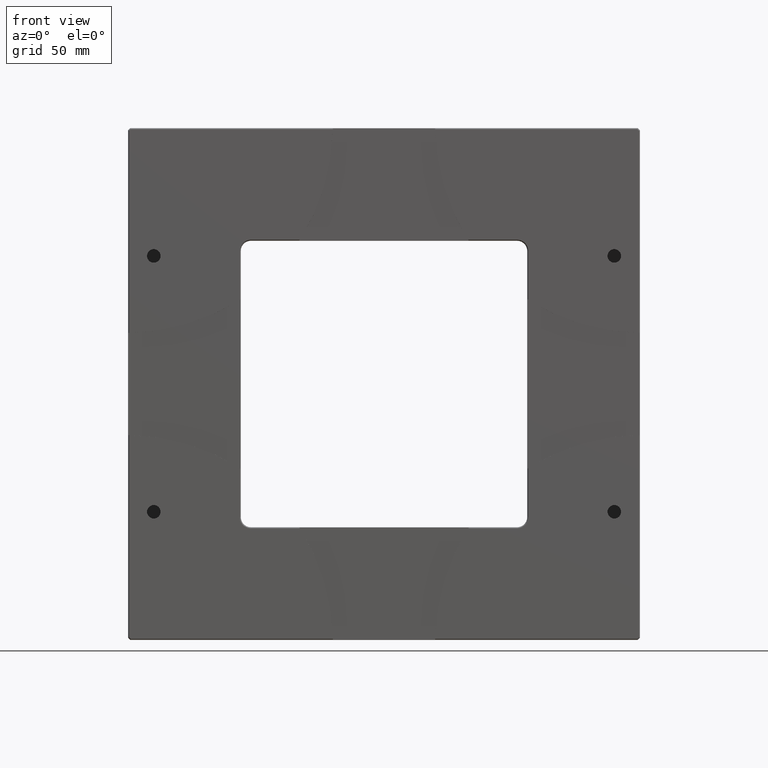
[diagram: clean part render]
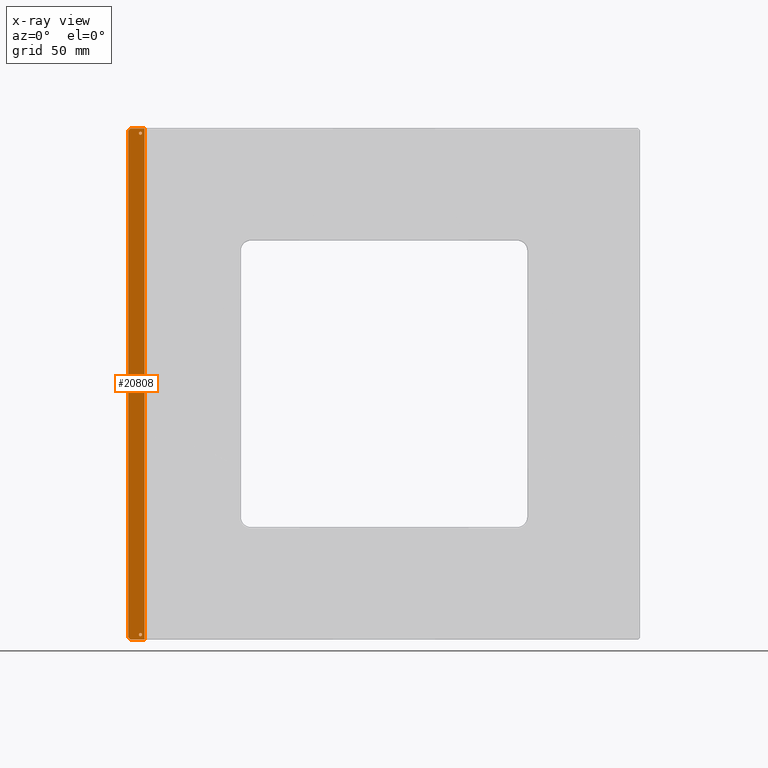
[diagram: x-ray — body ghosted, one internal face saturated and labeled with its STEP entity id]
A machine part, front view, then the same camera in x-ray: the body is ghosted and one INTERNAL B-rep face — a face not visible from any outside direction — is saturated and labeled: STEP entity #20808.
In plain terms, the highlighted planar face has unit normal (-0, -1, -0).
Its self-contained STEP definition (entity closure, byte-faithful):
#829 = CARTESIAN_POINT ( 'NONE',  ( -295.2977721377215500, 34.50000000000003600, 2.499999999999947200 ) ) ;
#910 = LINE ( 'NONE', #19781, #13258 ) ;
#1125 = FACE_OUTER_BOUND ( 'NONE', #3831, .T. ) ;
#1181 = AXIS2_PLACEMENT_3D ( 'NONE', #3020, #8380, #21251 ) ;
#1207 = PLANE ( 'NONE',  #1181 ) ;
#1902 = LINE ( 'NONE', #11521, #8839 ) ;
#1959 = DIRECTION ( 'NONE',  ( 0.0000000000000000000, 1.000000000000000000, 1.224646799147353000E-016 ) ) ;
#2104 = DIRECTION ( 'NONE',  ( 0.0000000000000000000, 1.000000000000000000, 1.224646799147353000E-016 ) ) ;
#2224 = EDGE_CURVE ( 'NONE', #13134, #3358, #17799, .T. ) ;
#2778 = AXIS2_PLACEMENT_3D ( 'NONE', #3614, #16436, #3540 ) ;
#3020 = CARTESIAN_POINT ( 'NONE',  ( -177.0477721377215500, 34.50000000000002100, 124.9999999999999900 ) ) ;
#3053 = ORIENTED_EDGE ( 'NONE', *, *, #19266, .T. ) ;
#3358 = VERTEX_POINT ( 'NONE', #11664 ) ;
#3397 = AXIS2_PLACEMENT_3D ( 'NONE', #5718, #1959, #14827 ) ;
#3420 = VERTEX_POINT ( 'NONE', #829 ) ;
#3540 = DIRECTION ( 'NONE',  ( -1.000000000000000000, 0.0000000000000000000, 0.0000000000000000000 ) ) ;
#3598 = FACE_BOUND ( 'NONE', #3813, .T. ) ;
#3614 = CARTESIAN_POINT ( 'NONE',  ( -296.0477721377216100, 34.50000000000000700, 247.4999999999999100 ) ) ;
#3813 = EDGE_LOOP ( 'NONE', ( #5257, #22229 ) ) ;
#3831 = EDGE_LOOP ( 'NONE', ( #11234, #6447, #5045, #3053, #19486, #16427 ) ) ;
#4152 = CARTESIAN_POINT ( 'NONE',  ( -295.2977721377216100, 34.50000000000000700, 247.4999999999999100 ) ) ;
#4611 = ORIENTED_EDGE ( 'NONE', *, *, #12826, .F. ) ;
#4761 = CARTESIAN_POINT ( 'NONE',  ( -294.0477721377216100, 34.50000000000000700, 249.7999999999999500 ) ) ;
#5045 = ORIENTED_EDGE ( 'NONE', *, *, #22497, .F. ) ;
#5257 = ORIENTED_EDGE ( 'NONE', *, *, #9466, .F. ) ;
#5684 = DIRECTION ( 'NONE',  ( -0.7071067811865231500, -8.659560562355231100E-017, 0.7071067811865717800 ) ) ;
#5700 = CARTESIAN_POINT ( 'NONE',  ( -296.0477721377215500, 34.50000000000003600, 2.499999999999946700 ) ) ;
#5718 = CARTESIAN_POINT ( 'NONE',  ( -296.0477721377215500, 34.50000000000003600, 2.499999999999946700 ) ) ;
#6447 = ORIENTED_EDGE ( 'NONE', *, *, #8542, .T. ) ;
#7961 = EDGE_CURVE ( 'NONE', #15832, #3420, #18261, .T. ) ;
#8380 = DIRECTION ( 'NONE',  ( -2.189528850507526700E-047, -1.000000000000000000, -1.224646799147353000E-016 ) ) ;
#8504 = VERTEX_POINT ( 'NONE', #18436 ) ;
#8521 = CARTESIAN_POINT ( 'NONE',  ( -296.7977721377214900, 34.50000000000003600, 2.499999999999946300 ) ) ;
#8542 = EDGE_CURVE ( 'NONE', #23489, #21891, #21932, .T. ) ;
#8839 = VECTOR ( 'NONE', #19424, 1000.000000000000100 ) ;
#9315 = VERTEX_POINT ( 'NONE', #13630 ) ;
#9449 = LINE ( 'NONE', #15494, #18652 ) ;
#9466 = EDGE_CURVE ( 'NONE', #8504, #11752, #9785, .T. ) ;
#9785 = CIRCLE ( 'NONE', #2778, 0.7499999999999729100 ) ;
#9820 = ORIENTED_EDGE ( 'NONE', *, *, #7961, .F. ) ;
#10051 = DIRECTION ( 'NONE',  ( -1.000000000000000000, 0.0000000000000000000, 0.0000000000000000000 ) ) ;
#10153 = CARTESIAN_POINT ( 'NONE',  ( -294.0477721377215500, 34.50000000000003600, 0.1999999999999085800 ) ) ;
#10201 = DIRECTION ( 'NONE',  ( -9.714451382752058500E-017, -1.224646799147353200E-016, 1.000000000000000000 ) ) ;
#10760 = AXIS2_PLACEMENT_3D ( 'NONE', #22783, #15595, #10051 ) ;
#11167 = CARTESIAN_POINT ( 'NONE',  ( -177.0477721377215500, 34.50000000000000700, 249.8000000000000100 ) ) ;
#11234 = ORIENTED_EDGE ( 'NONE', *, *, #20239, .T. ) ;
#11514 = CARTESIAN_POINT ( 'NONE',  ( -300.9649294252469600, 34.50000000000000700, 249.7999999999999500 ) ) ;
#11521 = CARTESIAN_POINT ( 'NONE',  ( -300.9063507814843200, 34.50000000000000700, 249.8585786437626300 ) ) ;
#11650 = DIRECTION ( 'NONE',  ( 1.000000000000000000, -5.268570399476662800E-032, 4.302114212150675500E-016 ) ) ;
#11664 = CARTESIAN_POINT ( 'NONE',  ( -301.8477721377215100, 34.50000000000003600, 1.082842712474510400 ) ) ;
#11752 = VERTEX_POINT ( 'NONE', #4152 ) ;
#11922 = CIRCLE ( 'NONE', #11931, 0.7499999999999729100 ) ;
#11931 = AXIS2_PLACEMENT_3D ( 'NONE', #5700, #2104, #13023 ) ;
#12306 = VECTOR ( 'NONE', #5684, 1000.000000000000100 ) ;
#12617 = VECTOR ( 'NONE', #13516, 1000.000000000000000 ) ;
#12826 = EDGE_CURVE ( 'NONE', #3420, #15832, #11922, .T. ) ;
#13023 = DIRECTION ( 'NONE',  ( 1.000000000000000000, 0.0000000000000000000, 5.782411586589565700E-016 ) ) ;
#13134 = VERTEX_POINT ( 'NONE', #23270 ) ;
#13258 = VECTOR ( 'NONE', #10201, 1000.000000000000000 ) ;
#13492 = LINE ( 'NONE', #22730, #12617 ) ;
#13516 = DIRECTION ( 'NONE',  ( -9.714451382752058500E-017, -1.224646799147353200E-016, 1.000000000000000000 ) ) ;
#13630 = CARTESIAN_POINT ( 'NONE',  ( -301.8477721377215600, 34.50000000000000700, 248.9171572875253800 ) ) ;
#13705 = DIRECTION ( 'NONE',  ( -1.000000000000000000, 5.268570399476662800E-032, -4.302114212150675500E-016 ) ) ;
#14195 = EDGE_LOOP ( 'NONE', ( #4611, #9820 ) ) ;
#14827 = DIRECTION ( 'NONE',  ( 1.000000000000000000, 0.0000000000000000000, 5.782411586589565700E-016 ) ) ;
#15494 = CARTESIAN_POINT ( 'NONE',  ( -177.0477721377215500, 34.50000000000003600, 0.1999999999999779700 ) ) ;
#15595 = DIRECTION ( 'NONE',  ( 0.0000000000000000000, 1.000000000000000000, 1.224646799147353000E-016 ) ) ;
#15832 = VERTEX_POINT ( 'NONE', #8521 ) ;
#16427 = ORIENTED_EDGE ( 'NONE', *, *, #23597, .T. ) ;
#16436 = DIRECTION ( 'NONE',  ( 0.0000000000000000000, 1.000000000000000000, 1.224646799147353000E-016 ) ) ;
#16847 = VERTEX_POINT ( 'NONE', #10153 ) ;
#17799 = LINE ( 'NONE', #20355, #12306 ) ;
#18261 = CIRCLE ( 'NONE', #3397, 0.7499999999999729100 ) ;
#18436 = CARTESIAN_POINT ( 'NONE',  ( -296.7977721377215500, 34.50000000000000700, 247.4999999999999100 ) ) ;
#18652 = VECTOR ( 'NONE', #13705, 1000.000000000000000 ) ;
#19266 = EDGE_CURVE ( 'NONE', #16847, #13134, #9449, .T. ) ;
#19330 = VECTOR ( 'NONE', #11650, 1000.000000000000000 ) ;
#19424 = DIRECTION ( 'NONE',  ( 0.7071067811865668900, -8.659560562354695000E-017, 0.7071067811865281400 ) ) ;
#19486 = ORIENTED_EDGE ( 'NONE', *, *, #2224, .T. ) ;
#19781 = CARTESIAN_POINT ( 'NONE',  ( -294.0477721377216100, 34.50000000000000700, 249.9999999999999400 ) ) ;
#20239 = EDGE_CURVE ( 'NONE', #9315, #23489, #1902, .T. ) ;
#20355 = CARTESIAN_POINT ( 'NONE',  ( -301.9063507814842100, 34.50000000000003600, 1.141421356237210000 ) ) ;
#20808 = ADVANCED_FACE ( 'NONE', ( #3598, #21081, #1125 ), #1207, .F. ) ;
#21081 = FACE_BOUND ( 'NONE', #14195, .T. ) ;
#21251 = DIRECTION ( 'NONE',  ( -1.000000000000000000, 5.268570399476662800E-032, -4.302114212150675500E-016 ) ) ;
#21891 = VERTEX_POINT ( 'NONE', #4761 ) ;
#21932 = LINE ( 'NONE', #11167, #19330 ) ;
#21939 = CIRCLE ( 'NONE', #10760, 0.7499999999999729100 ) ;
#22229 = ORIENTED_EDGE ( 'NONE', *, *, #22423, .F. ) ;
#22423 = EDGE_CURVE ( 'NONE', #11752, #8504, #21939, .T. ) ;
#22497 = EDGE_CURVE ( 'NONE', #16847, #21891, #910, .T. ) ;
#22730 = CARTESIAN_POINT ( 'NONE',  ( -301.8477721377215100, 34.50000000000002100, 124.9999999999999300 ) ) ;
#22783 = CARTESIAN_POINT ( 'NONE',  ( -296.0477721377216100, 34.50000000000000700, 247.4999999999999100 ) ) ;
#23270 = CARTESIAN_POINT ( 'NONE',  ( -300.9649294252470200, 34.50000000000003600, 0.1999999999999224600 ) ) ;
#23489 = VERTEX_POINT ( 'NONE', #11514 ) ;
#23597 = EDGE_CURVE ( 'NONE', #3358, #9315, #13492, .T. ) ;